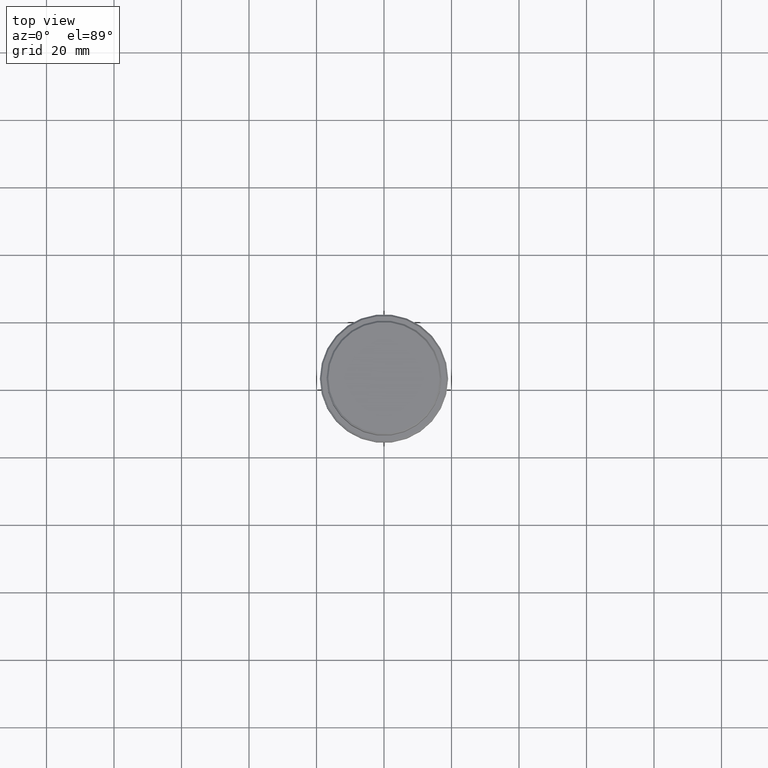
[diagram: clean part render]
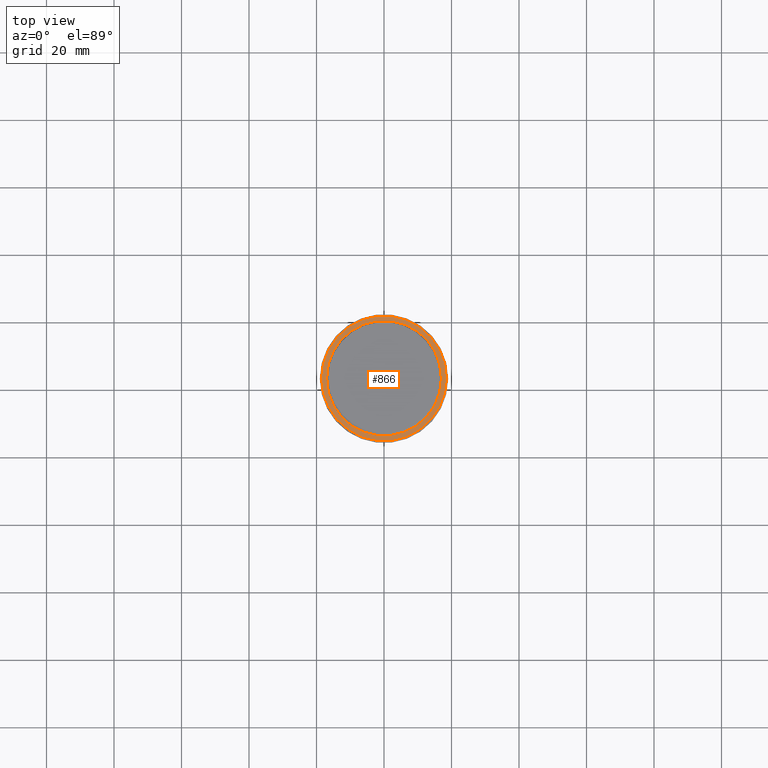
[diagram: same view with one face highlighted and labeled with its STEP entity id]
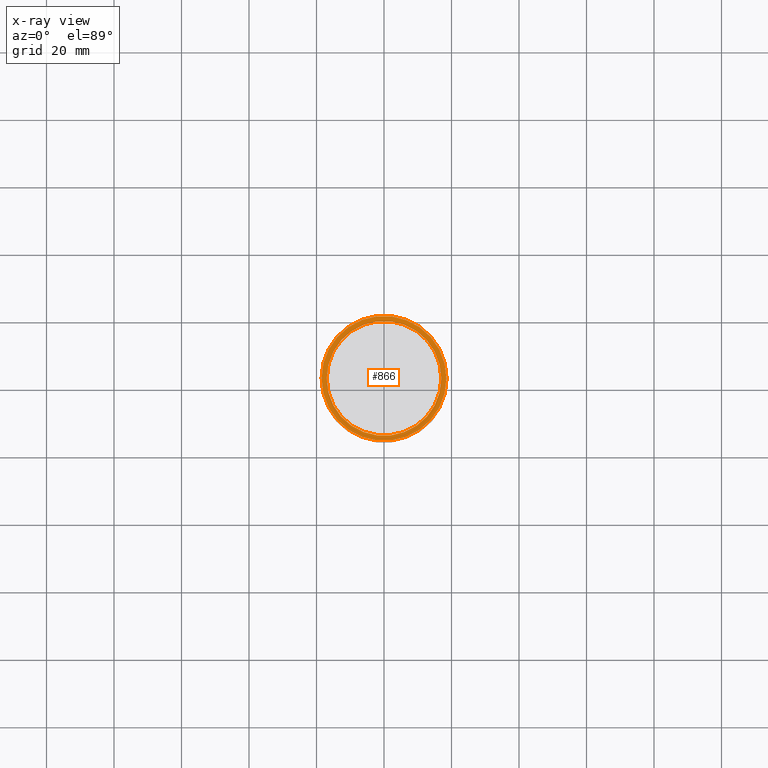
[diagram: x-ray of the same camera — body ghosted, the highlighted face saturated]
A machine part, top view. The second image highlights one B-rep face of the part: STEP entity #866.
The next image is the same camera in x-ray: the body ghosted, the highlighted face saturated — about 0% of this face is hidden behind the body in this view.
In plain terms, the highlighted planar face has unit normal (0, -0, 1).
Its self-contained STEP definition (entity closure, byte-faithful):
#44 = DIRECTION ( 'NONE',  ( 1.000000000000000000, 0.000000000000000000, 0.000000000000000000 ) ) ;
#80 = CARTESIAN_POINT ( 'NONE',  ( 0.000000000000000000, 16.49999999999996447, -9.999999999999998224 ) ) ;
#103 = VERTEX_POINT ( 'NONE', #256 ) ;
#111 = DIRECTION ( 'NONE',  ( -0.000000000000000000, -0.000000000000000000, 1.000000000000000000 ) ) ;
#135 = ORIENTED_EDGE ( 'NONE', *, *, #392, .T. ) ;
#160 = EDGE_LOOP ( 'NONE', ( #897, #1398 ) ) ;
#198 = DIRECTION ( 'NONE',  ( 1.000000000000000000, 0.000000000000000000, 0.000000000000000000 ) ) ;
#214 = DIRECTION ( 'NONE',  ( 1.000000000000000000, 0.000000000000000000, 0.000000000000000000 ) ) ;
#225 = VERTEX_POINT ( 'NONE', #702 ) ;
#227 = CARTESIAN_POINT ( 'NONE',  ( 0.000000000000000000, 0.000000000000000000, -9.999999999999998224 ) ) ;
#256 = CARTESIAN_POINT ( 'NONE',  ( -18.50000000000001776, 0.000000000000000000, -9.999999999999998224 ) ) ;
#258 = EDGE_CURVE ( 'NONE', #496, #225, #594, .T. ) ;
#392 = EDGE_CURVE ( 'NONE', #225, #496, #668, .T. ) ;
#407 = DIRECTION ( 'NONE',  ( 0.000000000000000000, -0.000000000000000000, 1.000000000000000000 ) ) ;
#480 = CIRCLE ( 'NONE', #670, 18.50000000000001776 ) ;
#496 = VERTEX_POINT ( 'NONE', #1370 ) ;
#518 = CARTESIAN_POINT ( 'NONE',  ( 0.000000000000000000, 0.000000000000000000, -9.999999999999998224 ) ) ;
#594 = CIRCLE ( 'NONE', #1323, 16.99999999999996803 ) ;
#596 = CARTESIAN_POINT ( 'NONE',  ( 18.50000000000001776, 2.296212748401286394E-15, -9.999999999999998224 ) ) ;
#668 = CIRCLE ( 'NONE', #705, 16.99999999999996803 ) ;
#670 = AXIS2_PLACEMENT_3D ( 'NONE', #1175, #111, #214 ) ;
#697 = CARTESIAN_POINT ( 'NONE',  ( 0.000000000000000000, 0.000000000000000000, -9.999999999999998224 ) ) ;
#702 = CARTESIAN_POINT ( 'NONE',  ( -16.99999999999996803, 2.081899558550496335E-15, -9.999999999999998224 ) ) ;
#705 = AXIS2_PLACEMENT_3D ( 'NONE', #227, #887, #1407 ) ;
#750 = AXIS2_PLACEMENT_3D ( 'NONE', #518, #1291, #954 ) ;
#754 = EDGE_LOOP ( 'NONE', ( #1136, #135 ) ) ;
#779 = VERTEX_POINT ( 'NONE', #596 ) ;
#865 = FACE_BOUND ( 'NONE', #754, .T. ) ;
#866 = ADVANCED_FACE ( 'NONE', ( #1404, #865 ), #945, .T. ) ;
#887 = DIRECTION ( 'NONE',  ( 0.000000000000000000, 0.000000000000000000, -1.000000000000000000 ) ) ;
#889 = AXIS2_PLACEMENT_3D ( 'NONE', #80, #407, #198 ) ;
#890 = CIRCLE ( 'NONE', #750, 18.50000000000001776 ) ;
#897 = ORIENTED_EDGE ( 'NONE', *, *, #1121, .T. ) ;
#945 = PLANE ( 'NONE',  #889 ) ;
#954 = DIRECTION ( 'NONE',  ( 1.000000000000000000, 0.000000000000000000, 0.000000000000000000 ) ) ;
#1079 = EDGE_CURVE ( 'NONE', #779, #103, #480, .T. ) ;
#1121 = EDGE_CURVE ( 'NONE', #103, #779, #890, .T. ) ;
#1134 = DIRECTION ( 'NONE',  ( 0.000000000000000000, 0.000000000000000000, -1.000000000000000000 ) ) ;
#1136 = ORIENTED_EDGE ( 'NONE', *, *, #258, .T. ) ;
#1175 = CARTESIAN_POINT ( 'NONE',  ( 0.000000000000000000, 0.000000000000000000, -9.999999999999998224 ) ) ;
#1291 = DIRECTION ( 'NONE',  ( -0.000000000000000000, -0.000000000000000000, 1.000000000000000000 ) ) ;
#1323 = AXIS2_PLACEMENT_3D ( 'NONE', #697, #1134, #44 ) ;
#1370 = CARTESIAN_POINT ( 'NONE',  ( 16.99999999999996803, 0.000000000000000000, -9.999999999999998224 ) ) ;
#1398 = ORIENTED_EDGE ( 'NONE', *, *, #1079, .T. ) ;
#1404 = FACE_OUTER_BOUND ( 'NONE', #160, .T. ) ;
#1407 = DIRECTION ( 'NONE',  ( 1.000000000000000000, 0.000000000000000000, 0.000000000000000000 ) ) ;